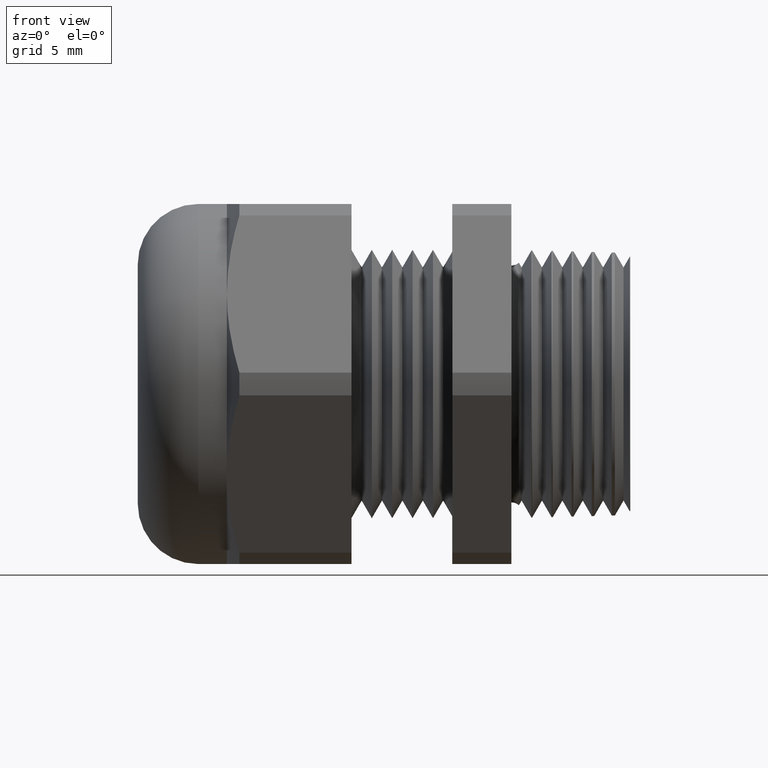
[diagram: clean part render]
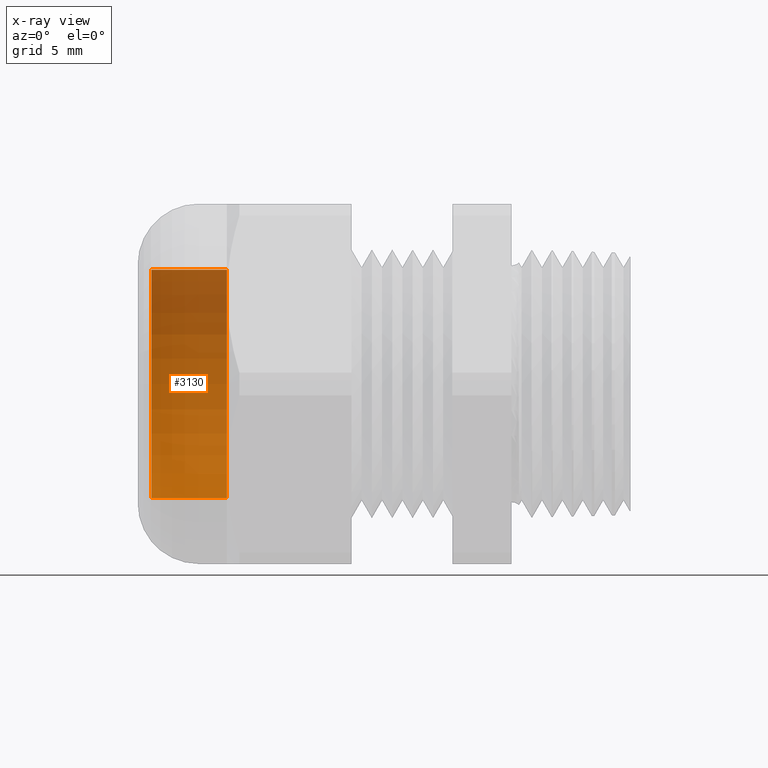
[diagram: x-ray — body ghosted, one internal face saturated and labeled with its STEP entity id]
A machine part, front view, then the same camera in x-ray: the body is ghosted and one INTERNAL B-rep face — a face not visible from any outside direction — is saturated and labeled: STEP entity #3130.
In plain terms, the highlighted cylindrical surface (partial cylindrical patch) has radius 8.528 mm, axis along (1, 0, 0).
Its self-contained STEP definition (entity closure, byte-faithful):
#2553 = CARTESIAN_POINT ( 'NONE',  ( -0.8375000000000000200, 0.0000000000000000000, -0.3357499999999999400 ) ) ;
#2554 = CARTESIAN_POINT ( 'NONE',  ( -0.8375000000000000200, 4.111751628137237600E-017, 0.3357499999999999400 ) ) ;
#2555 = DIRECTION ( 'NONE',  ( 1.000000000000000000, 0.0000000000000000000, 0.0000000000000000000 ) ) ;
#2556 = VECTOR ( 'NONE', #2555, 39.37007874015748100 ) ;
#2557 = CARTESIAN_POINT ( 'NONE',  ( 0.3423310023310022200, 0.0000000000000000000, -0.3357499999999999400 ) ) ;
#2558 = DIRECTION ( 'NONE',  ( 0.0000000000000000000, 0.0000000000000000000, -1.000000000000000000 ) ) ;
#2559 = DIRECTION ( 'NONE',  ( 1.000000000000000000, 0.0000000000000000000, 0.0000000000000000000 ) ) ;
#2560 = CARTESIAN_POINT ( 'NONE',  ( -0.8375000000000000200, 0.0000000000000000000, 0.0000000000000000000 ) ) ;
#2561 = AXIS2_PLACEMENT_3D ( 'NONE', #2560, #2559, #2558 ) ;
#2562 = CIRCLE ( 'NONE', #2561, 0.3357499999999999400 ) ;
#2563 = LINE ( 'NONE', #2557, #2556 ) ;
#2669 = CIRCLE ( 'NONE', #2731, 0.3357499999999998800 ) ;
#2670 = CARTESIAN_POINT ( 'NONE',  ( -1.060000000000000300, 4.111751628137237000E-017, 0.3357499999999998800 ) ) ;
#2671 = CARTESIAN_POINT ( 'NONE',  ( -1.060000000000000300, 0.0000000000000000000, -0.3357499999999998800 ) ) ;
#2672 = DIRECTION ( 'NONE',  ( 0.0000000000000000000, 0.0000000000000000000, -1.000000000000000000 ) ) ;
#2673 = DIRECTION ( 'NONE',  ( 1.000000000000000000, 0.0000000000000000000, 0.0000000000000000000 ) ) ;
#2674 = CARTESIAN_POINT ( 'NONE',  ( 0.3423310023310022200, 0.0000000000000000000, 0.0000000000000000000 ) ) ;
#2675 = AXIS2_PLACEMENT_3D ( 'NONE', #2674, #2673, #2672 ) ;
#2676 = CYLINDRICAL_SURFACE ( 'NONE', #2675, 0.3357499999999999400 ) ;
#2677 = FACE_OUTER_BOUND ( 'NONE', #3126, .T. ) ;
#2684 = DIRECTION ( 'NONE',  ( 1.000000000000000000, 0.0000000000000000000, 0.0000000000000000000 ) ) ;
#2685 = VECTOR ( 'NONE', #2684, 39.37007874015748100 ) ;
#2686 = CARTESIAN_POINT ( 'NONE',  ( 0.3423310023310022200, 4.111751628137237600E-017, 0.3357499999999999400 ) ) ;
#2687 = LINE ( 'NONE', #2686, #2685 ) ;
#2728 = DIRECTION ( 'NONE',  ( 0.0000000000000000000, 0.0000000000000000000, -1.000000000000000000 ) ) ;
#2729 = DIRECTION ( 'NONE',  ( 1.000000000000000000, 0.0000000000000000000, 0.0000000000000000000 ) ) ;
#2730 = CARTESIAN_POINT ( 'NONE',  ( -1.060000000000000300, 0.0000000000000000000, 0.0000000000000000000 ) ) ;
#2731 = AXIS2_PLACEMENT_3D ( 'NONE', #2730, #2729, #2728 ) ;
#3041 = EDGE_CURVE ( 'NONE', #3047, #3045, #2562, .T. ) ;
#3042 = EDGE_CURVE ( 'NONE', #3131, #3047, #2563, .T. ) ;
#3044 = ORIENTED_EDGE ( 'NONE', *, *, #3042, .F. ) ;
#3045 = VERTEX_POINT ( 'NONE', #2554 ) ;
#3046 = ORIENTED_EDGE ( 'NONE', *, *, #3041, .F. ) ;
#3047 = VERTEX_POINT ( 'NONE', #2553 ) ;
#3123 = ORIENTED_EDGE ( 'NONE', *, *, #3124, .T. ) ;
#3124 = EDGE_CURVE ( 'NONE', #3132, #3045, #2687, .T. ) ;
#3125 = ORIENTED_EDGE ( 'NONE', *, *, #3134, .T. ) ;
#3126 = EDGE_LOOP ( 'NONE', ( #3125, #3123, #3046, #3044 ) ) ;
#3130 = ADVANCED_FACE ( 'NONE', ( #2677 ), #2676, .T. ) ;
#3131 = VERTEX_POINT ( 'NONE', #2671 ) ;
#3132 = VERTEX_POINT ( 'NONE', #2670 ) ;
#3134 = EDGE_CURVE ( 'NONE', #3131, #3132, #2669, .T. ) ;